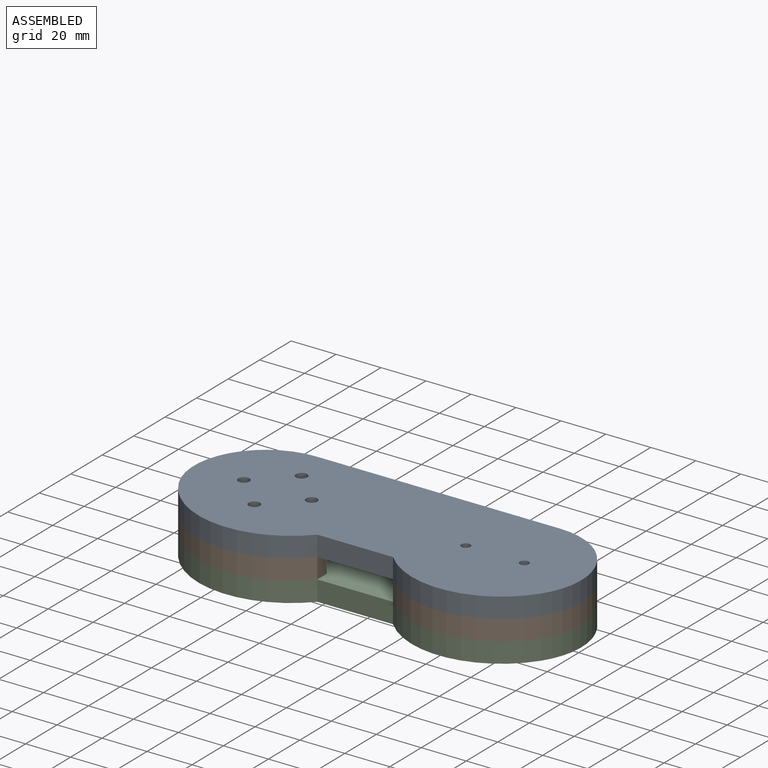
[diagram: assembled view]
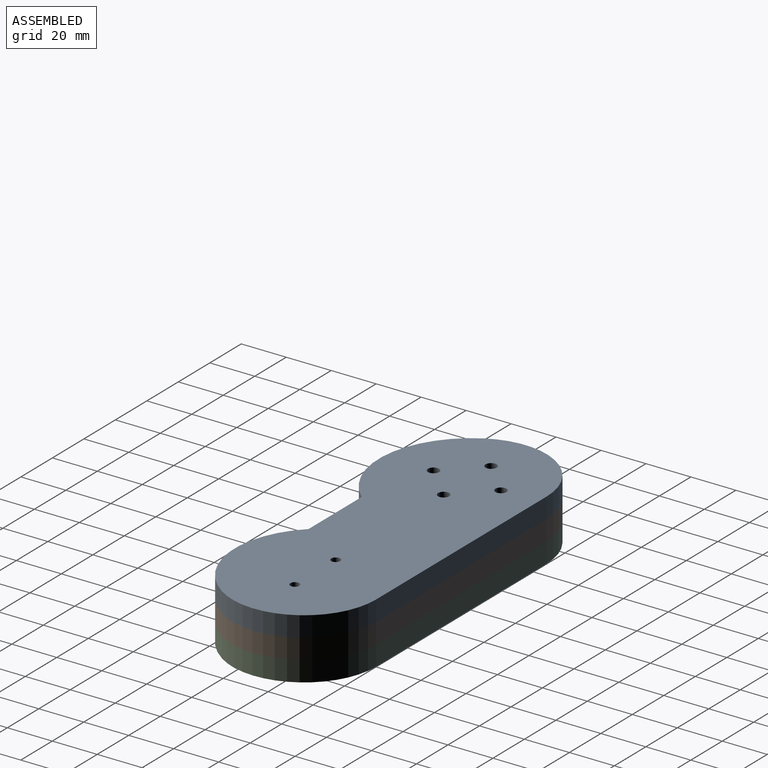
[diagram: assembled view, second angle]
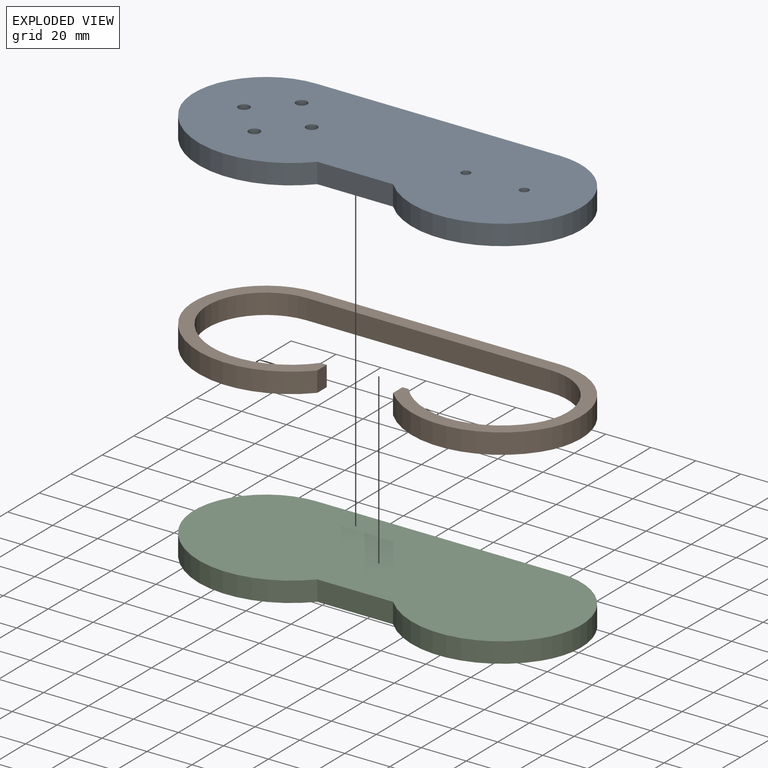
[diagram: exploded view]
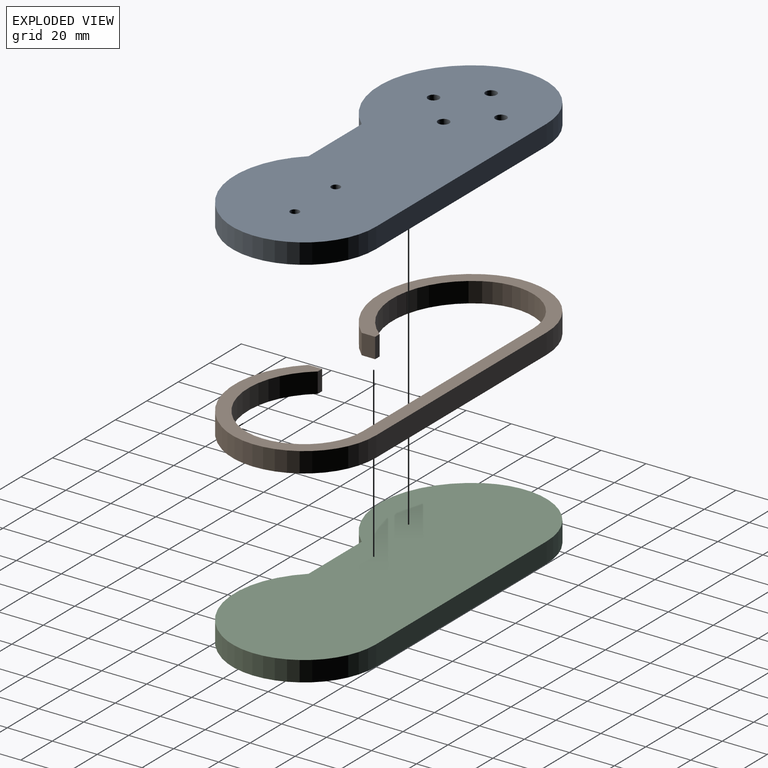
[diagram: exploded view, second angle]
ASSEMBLY  parts=3 mates=2
PART A: 14 faces, bbox 172.3x68.8x9 mm
  f0: plane 108.3x9mm, normal (0,1,0), area 974.7mm2, adj f10,f11,f12,f13
  f1: cylinder r=41.29mm len=66.93mm, axis (0,0,-1), area 708.7mm2, adj f2,f10,f11,f13
  f2: plane 33.71x9mm, normal (0,-1,0), area 303.4mm2, adj f1,f9,f10,f11
  f3: cylinder r=2mm len=9mm, axis (0,0,-1), area 113.1mm2, adj f10,f11
  f4: cylinder r=2mm len=9mm, axis (0,0,-1), area 113.1mm2, adj f10,f11
  f5: cylinder r=2.5mm len=9mm, axis (0,0,-1), area 141.4mm2, adj f10,f11
  f6: cylinder r=2.5mm len=9mm, axis (0,0,-1), area 141.4mm2, adj f10,f11
  f7: cylinder r=2.5mm len=9mm, axis (0,0,-1), area 141.4mm2, adj f10,f11
  f8: cylinder r=2.5mm len=9mm, axis (0,0,-1), area 141.4mm2, adj f10,f11
  f9: cylinder r=40mm len=62.12mm, axis (0,0,-1), area 643mm2, adj f2,f10,f11,f12
  f10: plane 172.3x68.79mm, normal (0,0,1), area 9885.8mm2, adj f0,f1,f2,f3,f4,f5,f6,f7
  f11: plane 172.3x68.79mm, normal (0,0,-1), area 9885.8mm2, adj f0,f1,f2,f3,f4,f5,f6,f7
  f12: cylinder r=32mm len=50mm, axis (0,0,-1), area 624.4mm2, adj f0,f9,f10,f11
  f13: cylinder r=32mm len=47.5mm, axis (0,0,-1), area 598mm2, adj f0,f1,f10,f11
PART B: 16 faces, bbox 172.3x68.8x9 mm
  f0: plane 172.3x68.79mm, normal (0,0,1), area 2254.9mm2, adj f1,f3,f4,f5,f6,f7,f8,f9
  f1: plane 9x2.71mm, normal (0,1,0), area 24.4mm2, adj f0,f2,f11,f15
  f2: plane 172.3x68.79mm, normal (0,0,-1), area 2254.9mm2, adj f1,f3,f4,f5,f6,f7,f8,f9
  f3: plane 108.3x9mm, normal (0,1,0), area 974.7mm2, adj f0,f2,f6,f7
  f4: cylinder r=41.29mm len=66.93mm, axis (0,0,-1), area 708.7mm2, adj f0,f2,f7,f14
  f5: cylinder r=40mm len=62.12mm, axis (0,0,-1), area 643mm2, adj f0,f2,f6,f15
  f6: cylinder r=32mm len=50mm, axis (0,0,-1), area 624.4mm2, adj f0,f2,f3,f5
  f7: cylinder r=32mm len=47.5mm, axis (0,0,-1), area 598mm2, adj f0,f2,f3,f4
  f8: plane 108.3x9mm, normal (0,-1,0), area 974.7mm2, adj f0,f2,f12,f13
  f9: cylinder r=35.29mm len=58.86mm, axis (0,0,-1), area 629.2mm2, adj f0,f2,f10,f13
  f10: plane 9x2.82mm, normal (0,1,0), area 25.3mm2, adj f0,f2,f9,f14
  f11: cylinder r=34mm len=54.45mm, axis (0,0,-1), area 569mm2, adj f0,f1,f2,f12
  f12: cylinder r=26mm len=40.63mm, axis (0,0,-1), area 507.4mm2, adj f0,f2,f8,f11
  f13: cylinder r=26mm len=38.59mm, axis (0,0,-1), area 485.9mm2, adj f0,f2,f8,f9
  f14: plane 9x6mm, normal (1,0,0), area 54mm2, adj f0,f2,f4,f10
  f15: plane 9x6mm, normal (-1,0,0), area 54mm2, adj f0,f1,f2,f5
PART C: 8 faces, bbox 172.3x68.8x9 mm
  f0: plane 108.3x9mm, normal (0,1,0), area 974.7mm2, adj f4,f5,f6,f7
  f1: cylinder r=41.29mm len=66.93mm, axis (0,0,-1), area 708.7mm2, adj f2,f4,f5,f7
  f2: plane 33.71x9mm, normal (0,-1,0), area 303.4mm2, adj f1,f3,f4,f5
  f3: cylinder r=40mm len=62.12mm, axis (0,0,-1), area 643mm2, adj f2,f4,f5,f6
  f4: plane 172.3x68.79mm, normal (0,0,1), area 9989.5mm2, adj f0,f1,f2,f3,f6,f7
  f5: plane 172.3x68.79mm, normal (0,0,-1), area 9989.5mm2, adj f0,f1,f2,f3,f6,f7
  f6: cylinder r=32mm len=50mm, axis (0,0,-1), area 624.4mm2, adj f0,f3,f4,f5
  f7: cylinder r=32mm len=47.5mm, axis (0,0,-1), area 598mm2, adj f0,f1,f4,f5
PLACE A t=(-81.54,18.19,12.04)mm
PLACE B t=(-81.54,18.19,3.04)mm
PLACE C t=(-81.54,18.19,-5.96)mm
MATE fastened B.f2 <-> C.f4  axis (0,0,-1) through (-54.48,-0.13,3.04)mm
MATE fastened B.f0 <-> A.f11  axis (0,0,1) through (-54.48,-0.13,12.04)mm
